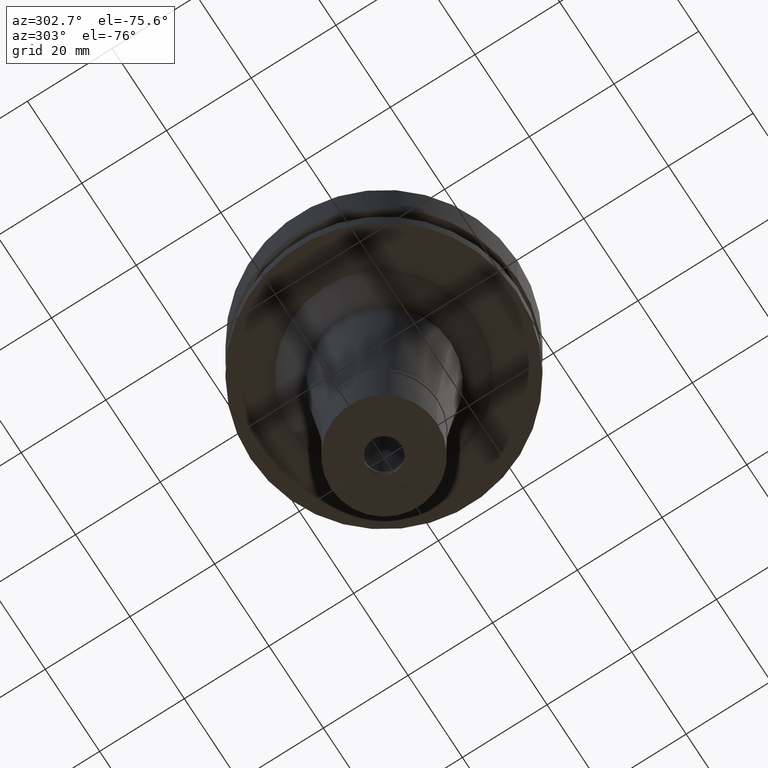
[diagram: clean part render]
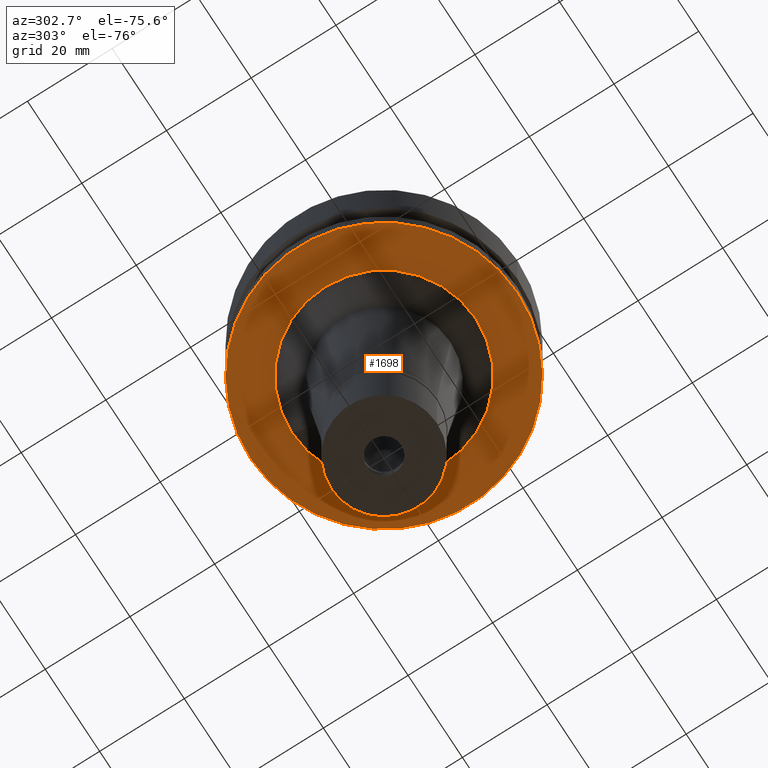
[diagram: same view with one face highlighted and labeled with its STEP entity id]
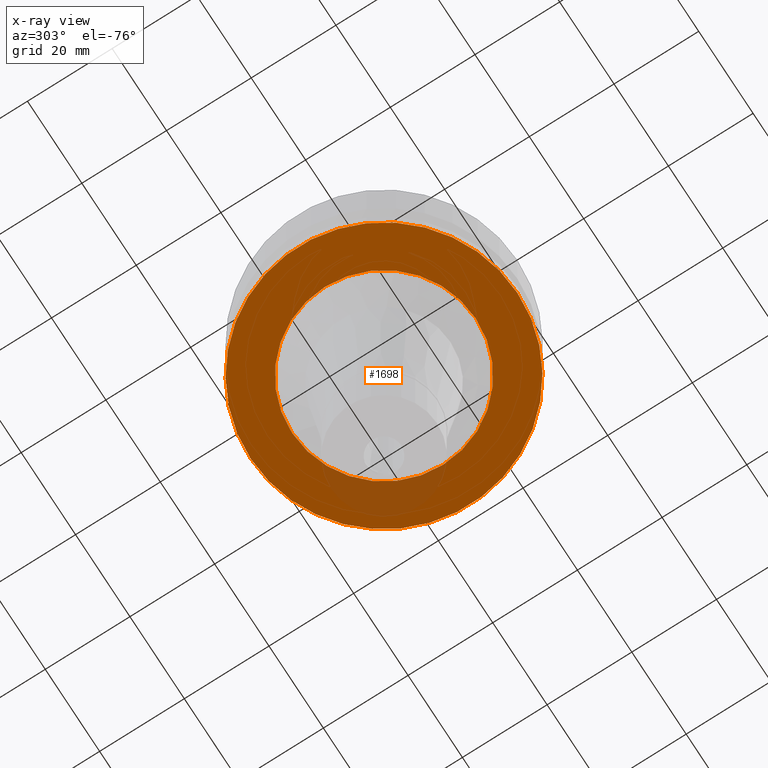
[diagram: x-ray of the same camera — body ghosted, the highlighted face saturated]
A machine part, auxiliary view. The second image highlights one B-rep face of the part: STEP entity #1698.
The next image is the same camera in x-ray: the body ghosted, the highlighted face saturated — about 9% of this face is hidden behind the body in this view.
In plain terms, the highlighted planar face has unit normal (0, 0, 1).
Its self-contained STEP definition (entity closure, byte-faithful):
#123 = DIRECTION ( 'NONE',  ( 0.0000000000000000000, 0.0000000000000000000, 1.000000000000000000 ) ) ;
#165 = ORIENTED_EDGE ( 'NONE', *, *, #2263, .F. ) ;
#214 = VERTEX_POINT ( 'NONE', #843 ) ;
#243 = VERTEX_POINT ( 'NONE', #2577 ) ;
#365 = PLANE ( 'NONE',  #2485 ) ;
#382 = FACE_OUTER_BOUND ( 'NONE', #889, .T. ) ;
#736 = DIRECTION ( 'NONE',  ( 0.0000000000000000000, 0.0000000000000000000, -1.000000000000000000 ) ) ;
#758 = FACE_BOUND ( 'NONE', #1994, .T. ) ;
#810 = CARTESIAN_POINT ( 'NONE',  ( 0.0000000000000000000, 0.0000000000000000000, -26.00000000000000000 ) ) ;
#843 = CARTESIAN_POINT ( 'NONE',  ( 0.0000000000000000000, -31.50000000000000000, -26.00000000000000000 ) ) ;
#865 = VERTEX_POINT ( 'NONE', #1888 ) ;
#889 = EDGE_LOOP ( 'NONE', ( #2697, #165 ) ) ;
#976 = CARTESIAN_POINT ( 'NONE',  ( 0.0000000000000000000, 0.0000000000000000000, -26.00000000000000000 ) ) ;
#1005 = DIRECTION ( 'NONE',  ( 0.0000000000000000000, -1.000000000000000000, 0.0000000000000000000 ) ) ;
#1025 = AXIS2_PLACEMENT_3D ( 'NONE', #810, #1914, #1884 ) ;
#1146 = VERTEX_POINT ( 'NONE', #2472 ) ;
#1267 = ORIENTED_EDGE ( 'NONE', *, *, #1310, .F. ) ;
#1270 = DIRECTION ( 'NONE',  ( 0.0000000000000000000, 0.0000000000000000000, 1.000000000000000000 ) ) ;
#1283 = DIRECTION ( 'NONE',  ( 0.0000000000000000000, 0.0000000000000000000, 1.000000000000000000 ) ) ;
#1310 = EDGE_CURVE ( 'NONE', #243, #865, #2303, .T. ) ;
#1348 = CIRCLE ( 'NONE', #1025, 21.71083395139999794 ) ;
#1541 = EDGE_CURVE ( 'NONE', #1146, #214, #1714, .T. ) ;
#1698 = ADVANCED_FACE ( 'NONE', ( #382, #758 ), #365, .F. ) ;
#1700 = CARTESIAN_POINT ( 'NONE',  ( 0.0000000000000000000, 0.0000000000000000000, -26.00000000000000000 ) ) ;
#1714 = CIRCLE ( 'NONE', #1897, 31.50000000000000000 ) ;
#1884 = DIRECTION ( 'NONE',  ( 0.0000000000000000000, 1.000000000000000000, 0.0000000000000000000 ) ) ;
#1888 = CARTESIAN_POINT ( 'NONE',  ( 0.0000000000000000000, 21.71083395139999794, -26.00000000000000000 ) ) ;
#1897 = AXIS2_PLACEMENT_3D ( 'NONE', #2087, #1270, #2537 ) ;
#1914 = DIRECTION ( 'NONE',  ( 0.0000000000000000000, 0.0000000000000000000, -1.000000000000000000 ) ) ;
#1994 = EDGE_LOOP ( 'NONE', ( #2605, #1267 ) ) ;
#2051 = DIRECTION ( 'NONE',  ( 0.0000000000000000000, -1.000000000000000000, 0.0000000000000000000 ) ) ;
#2087 = CARTESIAN_POINT ( 'NONE',  ( 0.0000000000000000000, 0.0000000000000000000, -26.00000000000000000 ) ) ;
#2122 = AXIS2_PLACEMENT_3D ( 'NONE', #976, #123, #1005 ) ;
#2140 = DIRECTION ( 'NONE',  ( 1.000000000000000000, 0.0000000000000000000, 0.0000000000000000000 ) ) ;
#2184 = EDGE_CURVE ( 'NONE', #865, #243, #1348, .T. ) ;
#2249 = AXIS2_PLACEMENT_3D ( 'NONE', #2500, #736, #2051 ) ;
#2263 = EDGE_CURVE ( 'NONE', #214, #1146, #2597, .T. ) ;
#2303 = CIRCLE ( 'NONE', #2249, 21.71083395139999794 ) ;
#2472 = CARTESIAN_POINT ( 'NONE',  ( 0.0000000000000000000, 31.50000000000000000, -26.00000000000000000 ) ) ;
#2485 = AXIS2_PLACEMENT_3D ( 'NONE', #1700, #1283, #2140 ) ;
#2500 = CARTESIAN_POINT ( 'NONE',  ( 0.0000000000000000000, 0.0000000000000000000, -26.00000000000000000 ) ) ;
#2537 = DIRECTION ( 'NONE',  ( 0.0000000000000000000, 1.000000000000000000, 0.0000000000000000000 ) ) ;
#2577 = CARTESIAN_POINT ( 'NONE',  ( 0.0000000000000000000, -21.71083395139999794, -26.00000000000000000 ) ) ;
#2597 = CIRCLE ( 'NONE', #2122, 31.50000000000000000 ) ;
#2605 = ORIENTED_EDGE ( 'NONE', *, *, #2184, .F. ) ;
#2697 = ORIENTED_EDGE ( 'NONE', *, *, #1541, .F. ) ;